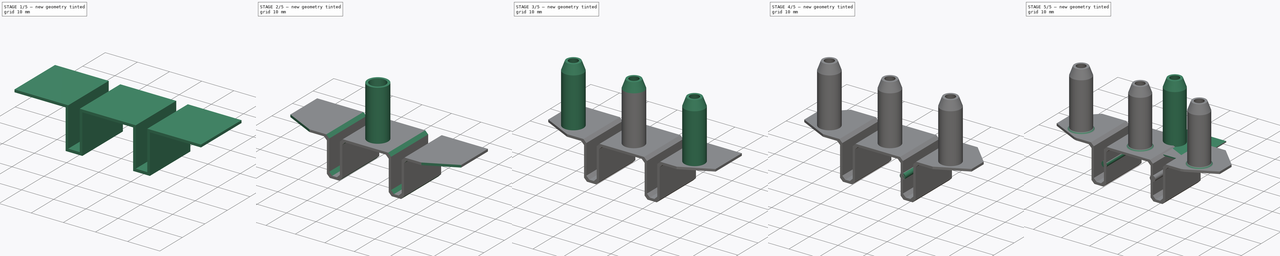
[diagram: build sequence overview — one tinted view per stage of 5, left to right]
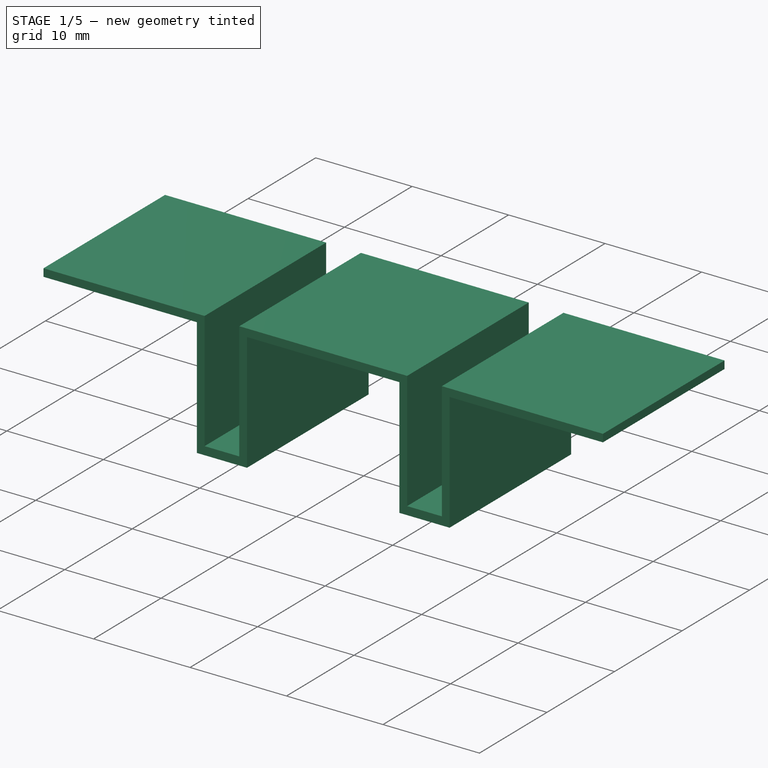
[diagram: stage 1 of 5 — iso view after this stage's code; geometry added in this stage tinted green]
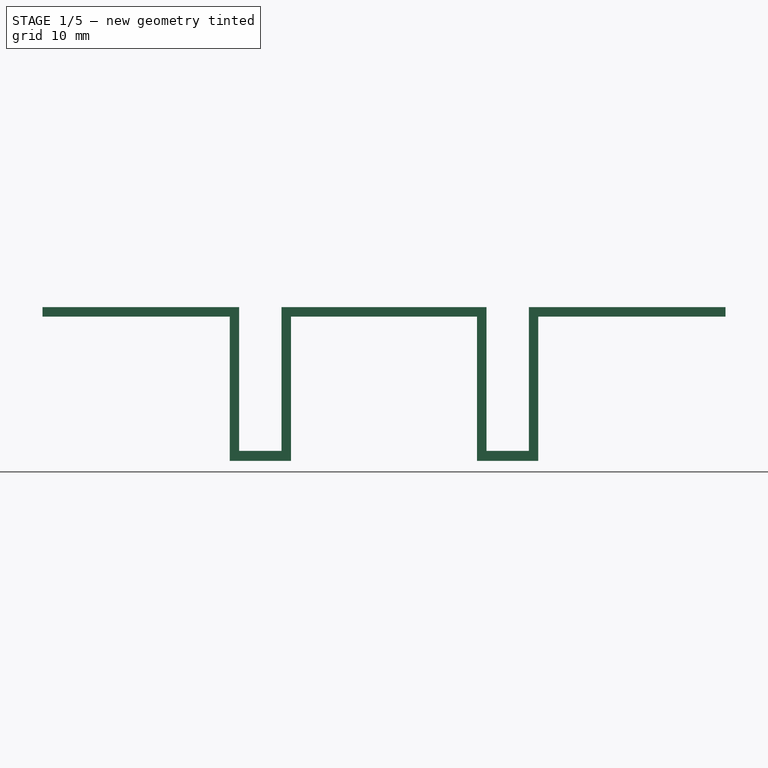
[diagram: stage 1 of 5 — front view after this stage's code; geometry added in this stage tinted green]
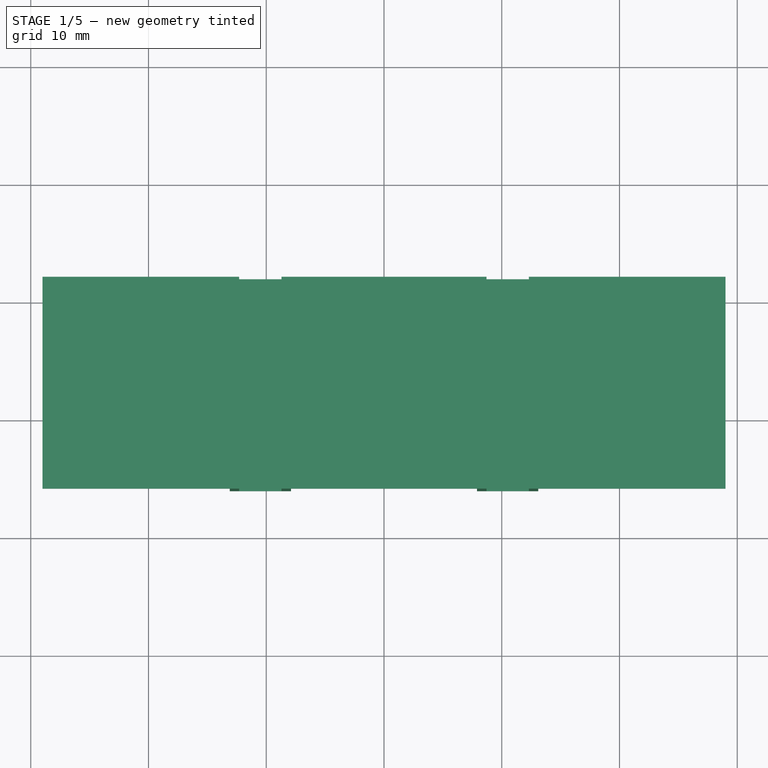
[diagram: stage 1 of 5 — top view after this stage's code; geometry added in this stage tinted green]
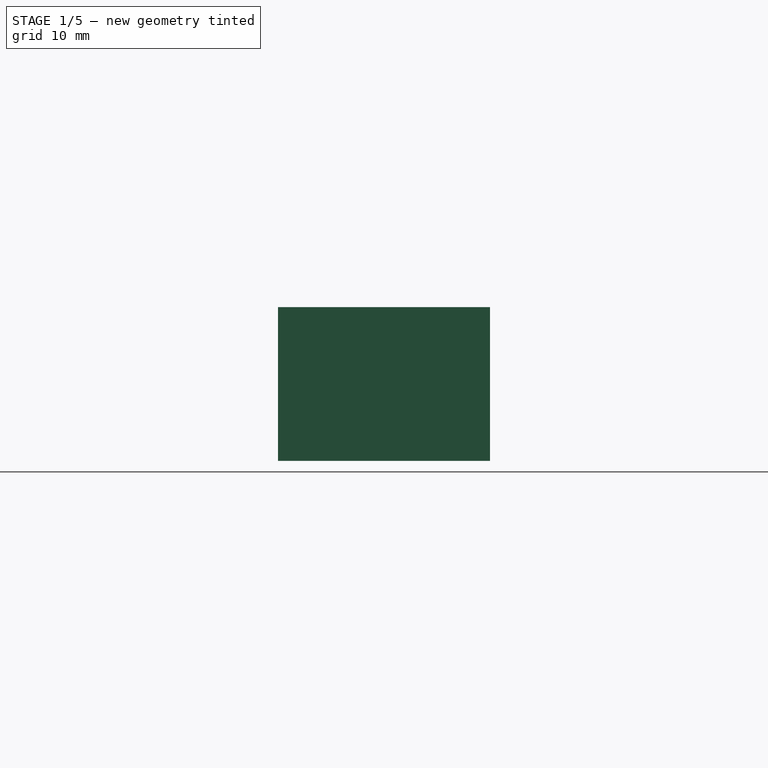
[diagram: stage 1 of 5 — right view after this stage's code; geometry added in this stage tinted green]
FCSTD DOCUMENT  (FreeCAD 1.2R20260210 (Git shallow))
Label: PD_TubeCover
License: Creative Commons Attribution 4.0
LicenseURL: https://creativecommons.org/licenses/by/4.0/
objects: PartDesign::SubShapeBinder×5, PartDesign::Mirrored×4, PartDesign::Pocket×4, PartDesign::Chamfer×4, PartDesign::Body×3, App::Point×3, PartDesign::AdditiveCylinder×2, PartDesign::AdditiveBox×2, PartDesign::Boolean×2, PartDesign::Pad×2, PartDesign::SubtractiveBox×2, PartDesign::SubtractiveCylinder×1, Sketcher::SketchObject×1
note: 73 computed .brp shape members not serialized (recipe doc carries the construction recipe); baked Part::Feature solids carry a one-line shape summary decoded from their .brp

FEATURE [Sketcher::SketchObject] Sketch
  ArcFitTolerance = 0
  AttachmentSupport = -> [XY_Plane003]
  ExternalTypes = [0]
  FullyConstrained = true
  MakeInternals = false
  MapMode = 5
  sketch-geometry (4):
    g0: LineSegment StartX=-29 StartY=-6 StartZ=0 EndX=29 EndY=-6 EndZ=0
    g1: LineSegment StartX=29 StartY=-6 StartZ=0 EndX=29 EndY=12 EndZ=0
    g2: LineSegment StartX=29 StartY=12 StartZ=0 EndX=-29 EndY=12 EndZ=0
    g3: LineSegment StartX=-29 StartY=12 StartZ=0 EndX=-29 EndY=-6 EndZ=0
  constraints (11):
    c: Coincident(g0,g1)
    c: Coincident(g1,g2)
    c: Coincident(g2,g3)
    c: Coincident(g3,g0)
    c: Horizontal(g0)
    c: Vertical(g1)
    c: Vertical(g3)
    c: DistanceY(g1,g1) = 18
    c: DistanceY(g0,g-1) = 6
    c: DistanceX(g2,g2) = 58
    c: Symmetric(g2,g1,g-2)
FEATURE [PartDesign::Pad] Pad
  Direction = (0,0,1)
  Length = 0.8
  Length2 = 10
  Profile = -> Sketch
  ReferenceAxis = -> Sketch [N_Axis]
  Refine = true
  SideType = 0
  Suppressed = false
  Type = 0
  Type2 = 0
FEATURE [PartDesign::SubShapeBinder] Binder005
  BindCopyOnChange = 0
  BindMode = 0
  ClaimChildren = false
  Context = -> Body003 [Binder005.]
  Fuse = false
  MakeFace = true
  OffsetFill = false
  OffsetIntersection = false
  OffsetJoinType = 0
  OffsetOpenResult = false
  PartialLoad = false
  Refine = true
  Relative = true
  Support = -> [Body]
  _Version = 2
FEATURE [PartDesign::SubShapeBinder] Binder006
  BindCopyOnChange = 0
  BindMode = 0
  ClaimChildren = false
  Context = -> Body003 [Binder006.]
  Fuse = false
  MakeFace = true
  OffsetFill = false
  OffsetIntersection = false
  OffsetJoinType = 0
  OffsetOpenResult = false
  PartialLoad = false
  Placement = pos=(21,0,0) rot=(0,0,1;0rad)
  Refine = true
  Relative = true
  Support = -> [Body]
  _Version = 2
FEATURE [PartDesign::SubShapeBinder] Binder007
  BindCopyOnChange = 0
  BindMode = 0
  ClaimChildren = false
  Context = -> Body003 [Binder007.]
  Fuse = false
  MakeFace = true
  OffsetFill = false
  OffsetIntersection = false
  OffsetJoinType = 0
  OffsetOpenResult = false
  PartialLoad = false
  Placement = pos=(-21,0,0) rot=(0,0,1;0rad)
  Refine = true
  Relative = true
  Support = -> [Body]
  _Version = 2
FEATURE [PartDesign::AdditiveBox] Box001
  AttacherType = Attacher::AttachEngine3D
  AttachmentOffset = pos=(-13.1,-6,0) rot=(0,0,1;0rad)
  AttachmentSupport = -> [XY_Plane003]
  BaseFeature = -> Pad
  Height = 12.25
  Length = 5.2
  MapMode = 5
  Placement = pos=(13.1,-6,0) rot=(0,1,0;3.14159rad)
  Refine = true
  Suppressed = false
  Width = 18
FEATURE [PartDesign::Mirrored] Mirrored
  BaseFeature = -> Box001
  MirrorPlane = -> YZ_Plane003
  Originals = -> [Box001]
  Placement = pos=(13.1,-6,0) rot=(0,1,0;3.14159rad)
  Refine = true
  Suppressed = false
  TransformMode = 0
FEATURE [PartDesign::SubtractiveBox] Box002
  AttacherType = Attacher::AttachEngine3D
  AttachmentOffset = pos=(-12.3,-6,-8.6) rot=(0,0,1;0rad)
  AttachmentSupport = -> [XY_Plane003]
  BaseFeature = -> Mirrored
  Height = 20
  Length = 3.6
  MapMode = 5
  Placement = pos=(12.3,-6,8.6) rot=(0,1,0;3.14159rad)
  Refine = true
  Suppressed = false
  Width = 18
FEATURE [PartDesign::Mirrored] Mirrored001
  BaseFeature = -> Box002
  MirrorPlane = -> YZ_Plane003
  Originals = -> [Box002]
  Placement = pos=(12.3,-6,8.6) rot=(0,1,0;3.14159rad)
  Refine = true
  Suppressed = false
  TransformMode = 0
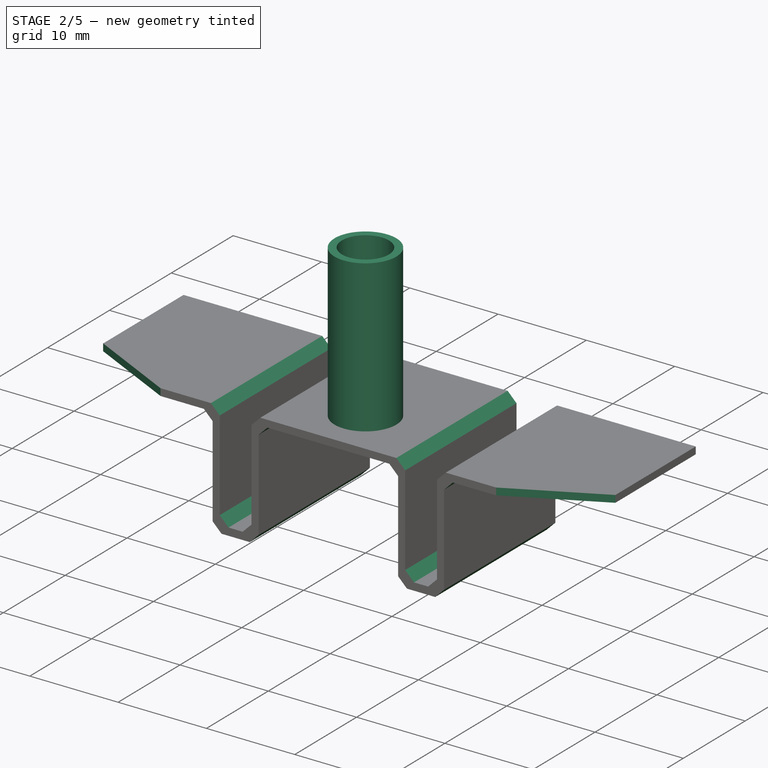
[diagram: stage 2 of 5 — iso view after this stage's code; geometry added in this stage tinted green]
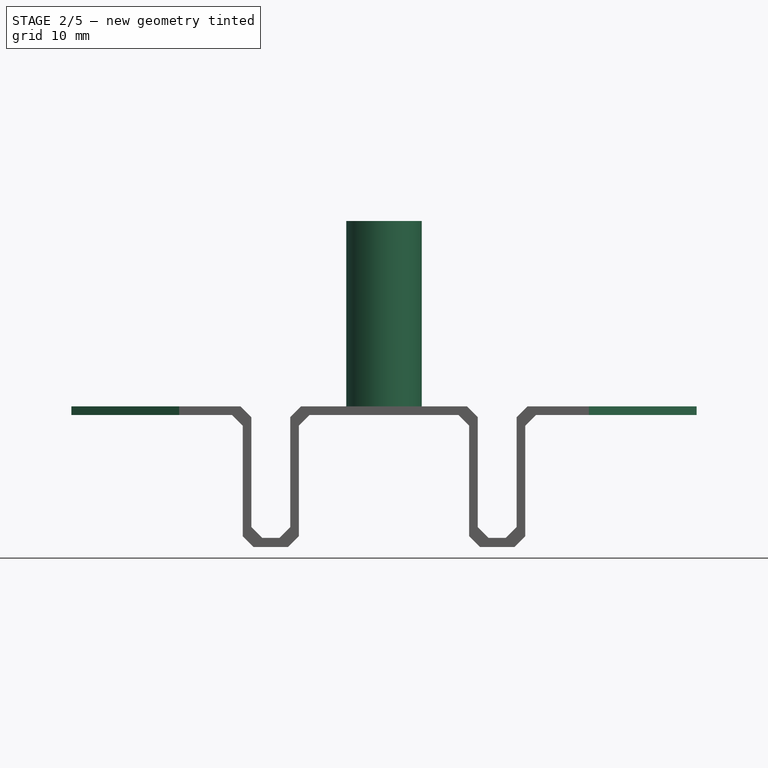
[diagram: stage 2 of 5 — front view after this stage's code; geometry added in this stage tinted green]
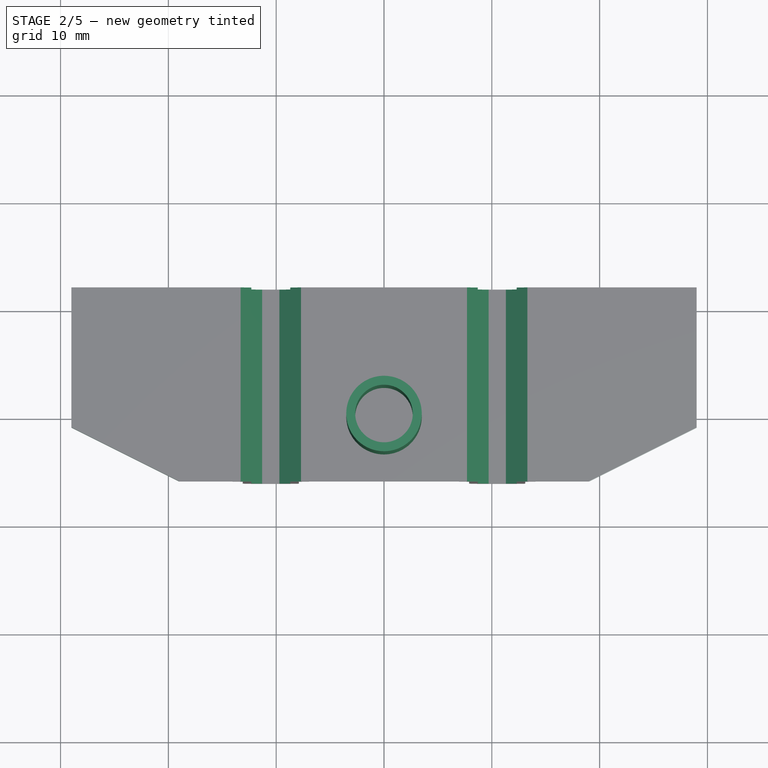
[diagram: stage 2 of 5 — top view after this stage's code; geometry added in this stage tinted green]
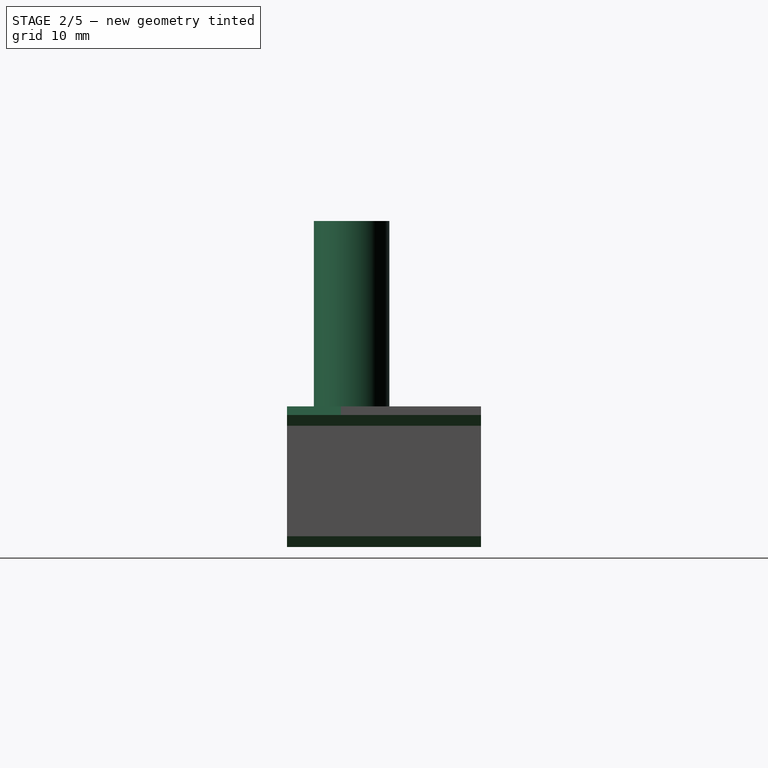
[diagram: stage 2 of 5 — right view after this stage's code; geometry added in this stage tinted green]
FEATURE [PartDesign::AdditiveCylinder] Cylinder001
  Angle = 360
  AttacherType = Attacher::AttachEngine3D
  AttachmentSupport = -> [XY_Plane]
  FirstAngle = 0
  Height = 18
  MapMode = 5
  Radius = 3.5
  Refine = true
  SecondAngle = 0
  Suppressed = false
FEATURE [PartDesign::SubtractiveCylinder] Cylinder
  Angle = 360
  AttacherType = Attacher::AttachEngine3D
  BaseFeature = -> Cylinder001
  FirstAngle = 0
  Height = 18
  Radius = 2.67
  Refine = true
  SecondAngle = 0
  Suppressed = false
FEATURE [PartDesign::Body] Body001  label="cover-1"
  AllowCompound = true
  Group = -> [Box,Binder001,Boolean,Pocket]
  Origin = -> Origin001
  Tip = -> Pocket
FEATURE [PartDesign::Chamfer] Chamfer001
  Angle = 45
  Base = -> Mirrored001 [Edge51,Edge54,Edge50,Edge47,Edge48,Edge52,Edge58,Edge25,Edge60,Edge59,Edge4,Edge44,Edge2,Edge57,Edge49,Edge53]
  BaseFeature = -> Mirrored001
  ChamferType = 0
  FlipDirection = false
  Placement = pos=(12.3,-6,8.6) rot=(0,1,0;3.14159rad)
  Refine = true
  Size = 1
  Size2 = 1
  SupportTransform = false
  Suppressed = false
  UseAllEdges = false
FEATURE [PartDesign::Chamfer] Chamfer
  Angle = 45
  Base = -> Chamfer001 [Edge74,Edge46]
  BaseFeature = -> Chamfer001
  ChamferType = 1
  FlipDirection = true
  Placement = pos=(12.3,-6,8.6) rot=(0,1,0;3.14159rad)
  Refine = true
  Size = 5
  Size2 = 10
  SupportTransform = false
  Suppressed = false
  UseAllEdges = false
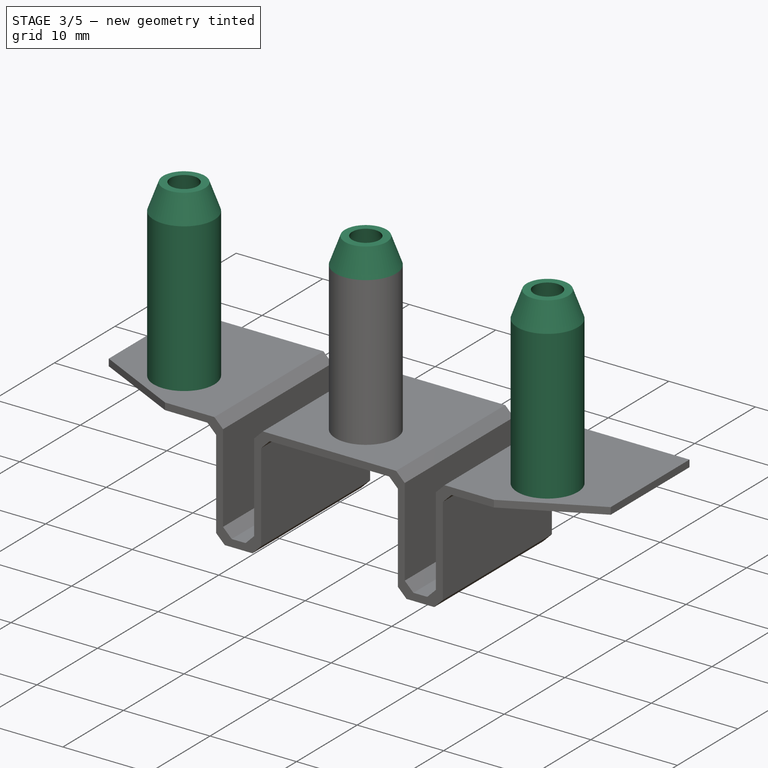
[diagram: stage 3 of 5 — iso view after this stage's code; geometry added in this stage tinted green]
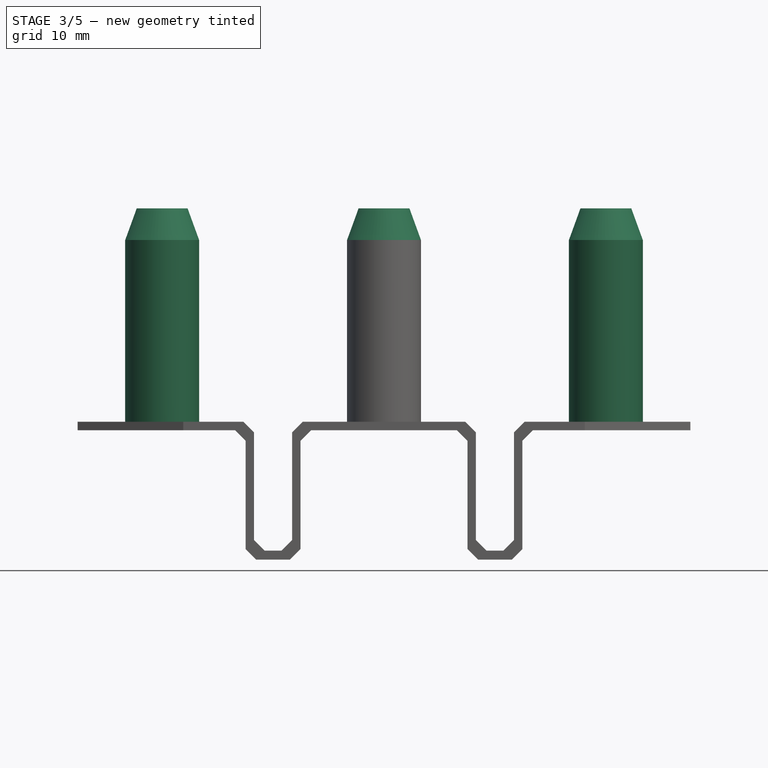
[diagram: stage 3 of 5 — front view after this stage's code; geometry added in this stage tinted green]
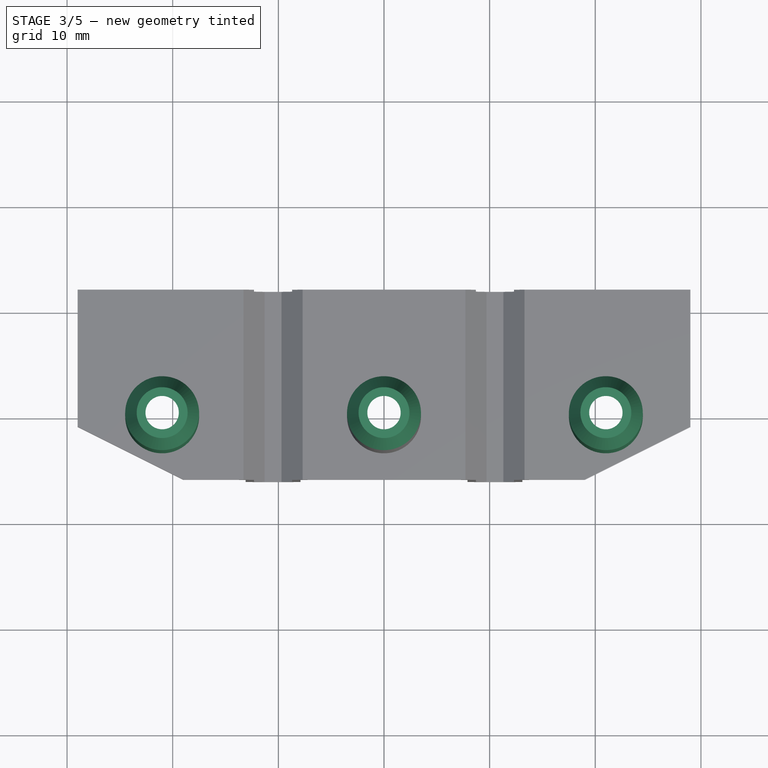
[diagram: stage 3 of 5 — top view after this stage's code; geometry added in this stage tinted green]
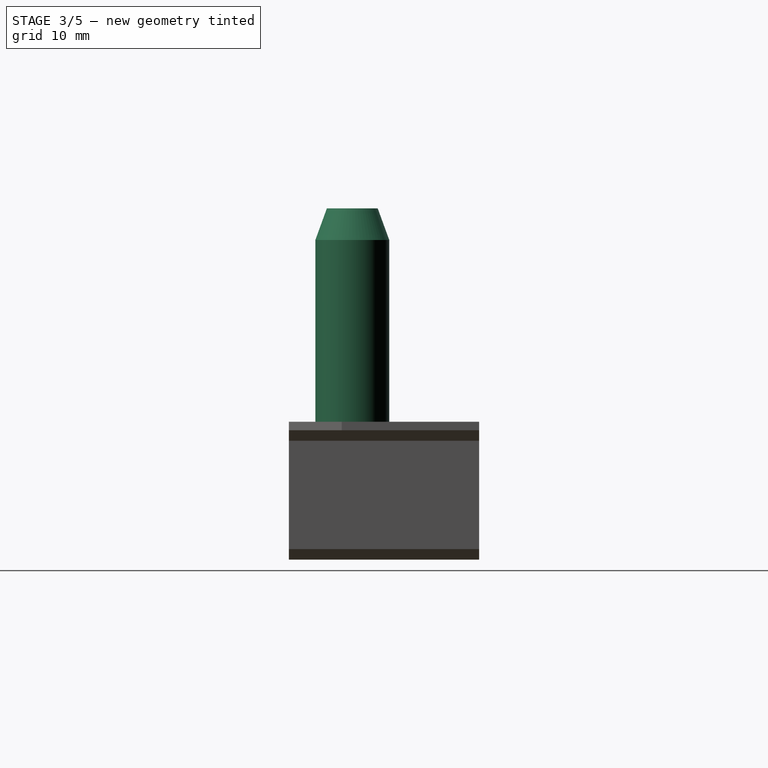
[diagram: stage 3 of 5 — right view after this stage's code; geometry added in this stage tinted green]
FEATURE [PartDesign::Pad] Pad001
  BaseFeature = -> Cylinder
  Direction = (0,0,1)
  Length = 3
  Length2 = 10
  Profile = -> Cylinder [Face3]
  Refine = true
  SideType = 0
  Suppressed = false
  TaperAngle = -20
  Type = 0
  Type2 = 0
FEATURE [PartDesign::Boolean] Boolean001
  BaseFeature = -> Chamfer
  Group = -> [Binder007,Binder005,Binder006]
  Refine = true
  Suppressed = false
  Type = 0
FEATURE [PartDesign::Pocket] Pocket001
  BaseFeature = -> Boolean001
  Direction = (-2e-16,0,-1)
  Length = 5
  Length2 = 5
  Profile = -> Boolean001 [Face53]
  Refine = true
  SideType = 0
  Suppressed = false
  Type = 0
  Type2 = 0
FEATURE [PartDesign::Pocket] Pocket002
  BaseFeature = -> Pocket001
  Direction = (-2e-16,0,-1)
  Length = 5
  Length2 = 5
  Profile = -> Pocket001 [Face55]
  Refine = true
  SideType = 0
  Suppressed = false
  Type = 0
  Type2 = 0
FEATURE [PartDesign::Pocket] Pocket003
  BaseFeature = -> Pocket002
  Direction = (-2e-16,0,-1)
  Length = 5
  Length2 = 5
  Profile = -> Pocket002 [Face55]
  Refine = true
  SideType = 0
  Suppressed = false
  Type = 0
  Type2 = 0
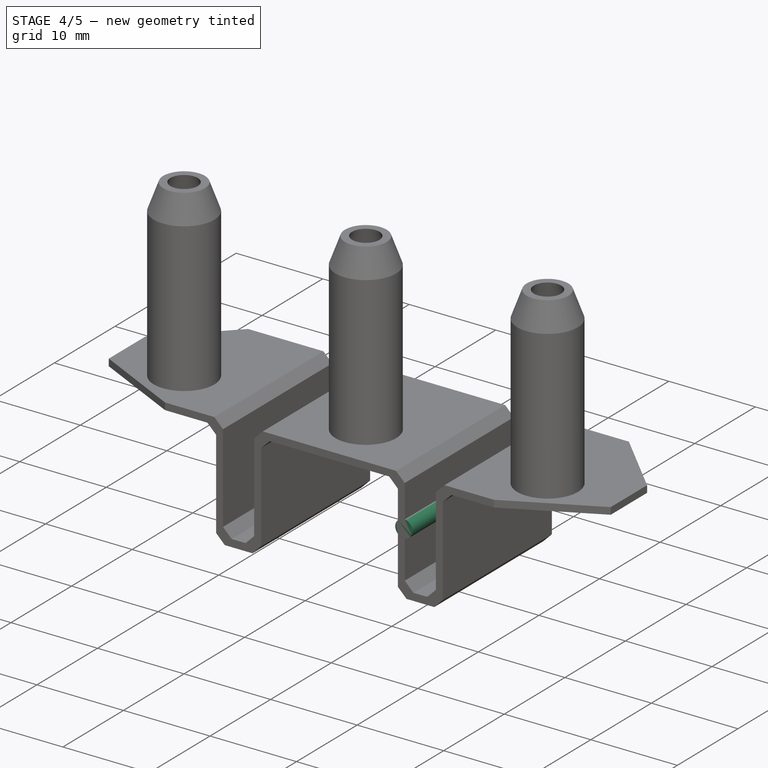
[diagram: stage 4 of 5 — iso view after this stage's code; geometry added in this stage tinted green]
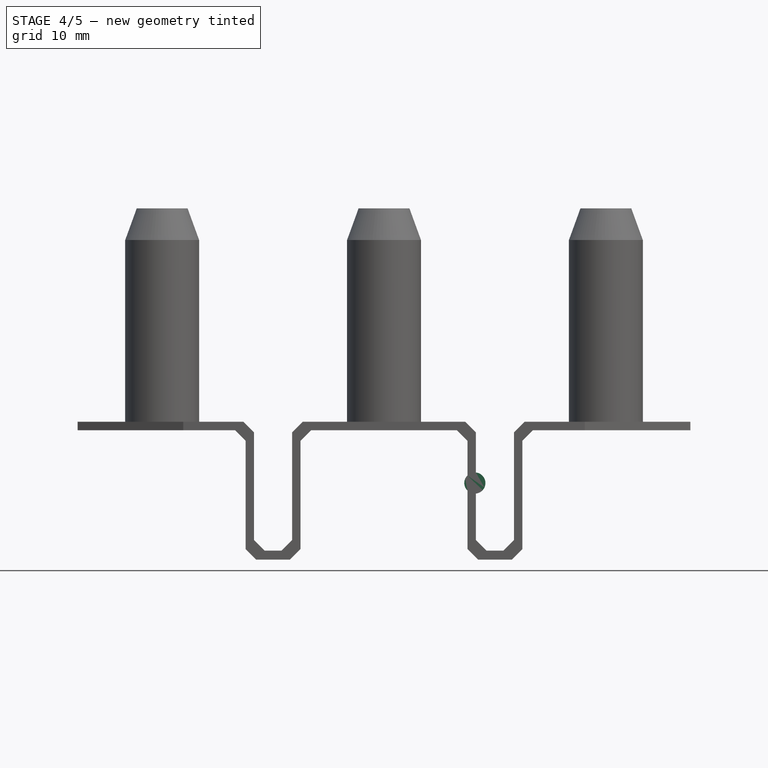
[diagram: stage 4 of 5 — front view after this stage's code; geometry added in this stage tinted green]
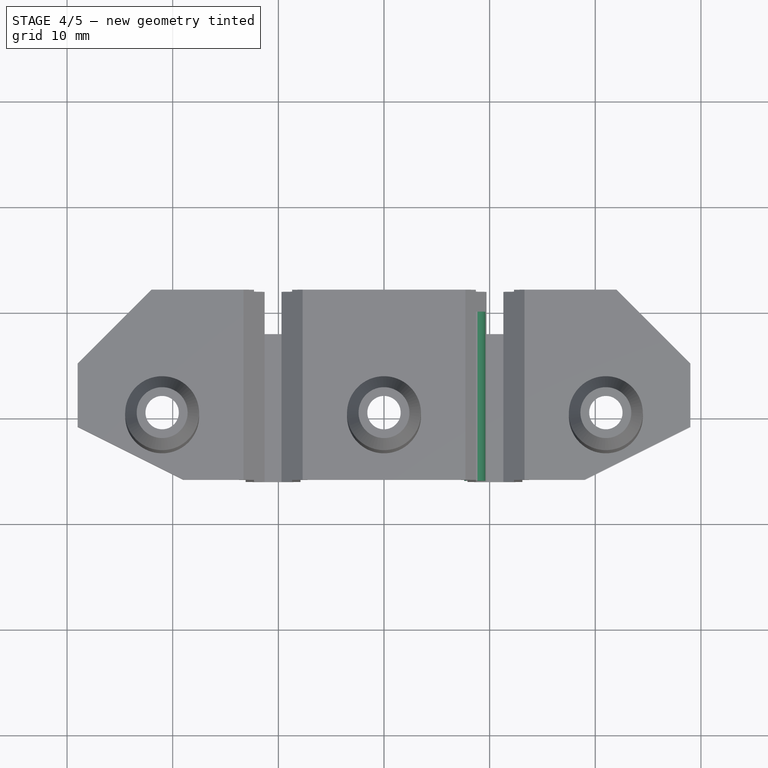
[diagram: stage 4 of 5 — top view after this stage's code; geometry added in this stage tinted green]
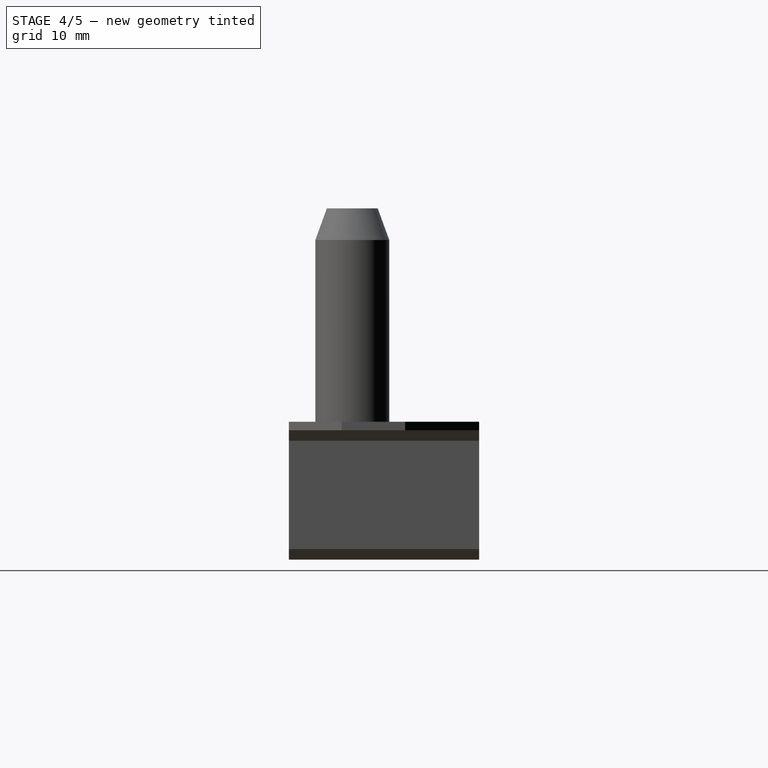
[diagram: stage 4 of 5 — right view after this stage's code; geometry added in this stage tinted green]
FEATURE [PartDesign::Chamfer] Chamfer002
  Angle = 45
  Base = -> Pocket003 [Edge119,Edge120]
  BaseFeature = -> Pocket003
  ChamferType = 0
  FlipDirection = false
  Refine = true
  Size = 7
  Size2 = 7
  SupportTransform = false
  Suppressed = false
  UseAllEdges = false
FEATURE [PartDesign::SubtractiveBox] Box003
  AttacherType = Attacher::AttachEngine3D
  AttachmentOffset = pos=(-11.3,8,-16) rot=(0,0,1;0rad)
  AttachmentSupport = -> [XY_Plane003]
  BaseFeature = -> Chamfer002
  Height = 10
  Length = 1.6
  MapMode = 5
  Placement = pos=(-11.3,8,-16) rot=(0,0,1;0rad)
  Refine = true
  Suppressed = false
  Width = 14
FEATURE [PartDesign::Mirrored] Mirrored002
  BaseFeature = -> Box003
  MirrorPlane = -> YZ_Plane003
  Originals = -> [Box003]
  Placement = pos=(-11.3,8,-16) rot=(0,0,1;0rad)
  Refine = true
  Suppressed = false
  TransformMode = 0
FEATURE [PartDesign::AdditiveCylinder] Cylinder002
  Angle = 360
  AttacherType = Attacher::AttachEngine3D
  AttachmentOffset = pos=(8.6,-5,-10) rot=(0,0,1;0rad)
  AttachmentSupport = -> [XZ_Plane003]
  BaseFeature = -> Mirrored002
  FirstAngle = 0
  Height = 16
  MapMode = 5
  Placement = pos=(8.6,10,-5) rot=(1,0,0;1.5708rad)
  Radius = 1
  Refine = true
  SecondAngle = 0
  Suppressed = false
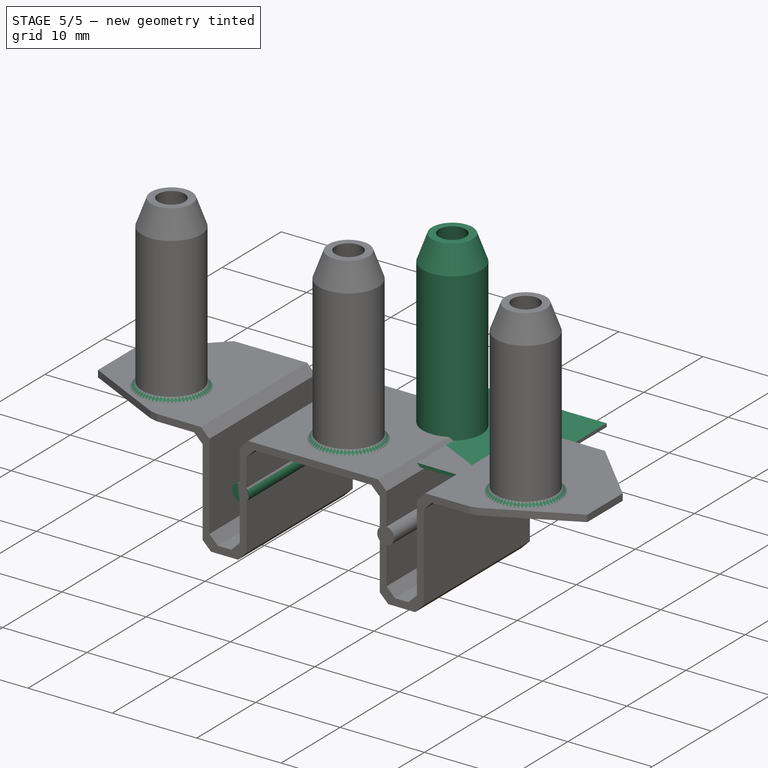
[diagram: stage 5 of 5 — iso view after this stage's code; geometry added in this stage tinted green]
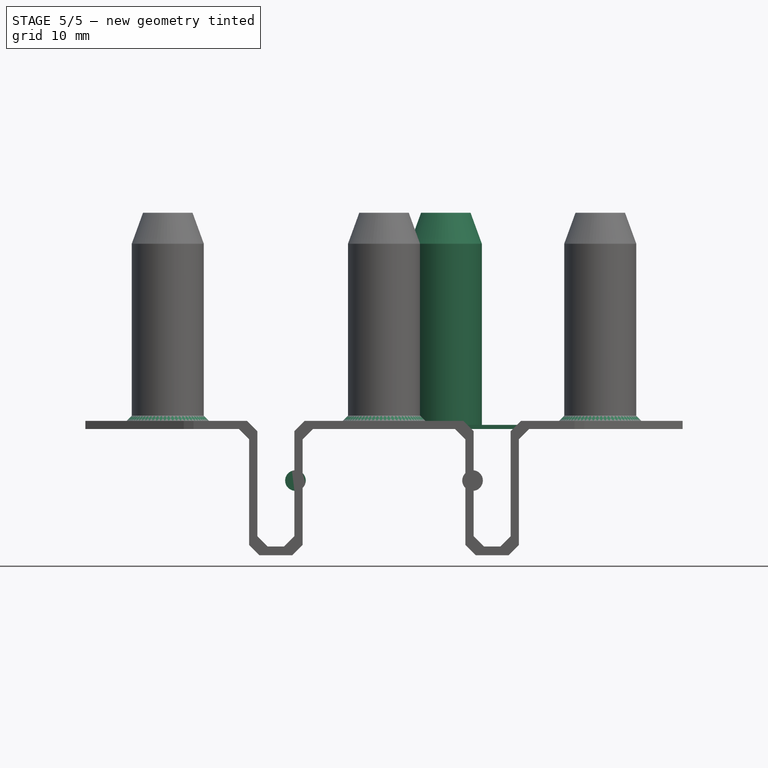
[diagram: stage 5 of 5 — front view after this stage's code; geometry added in this stage tinted green]
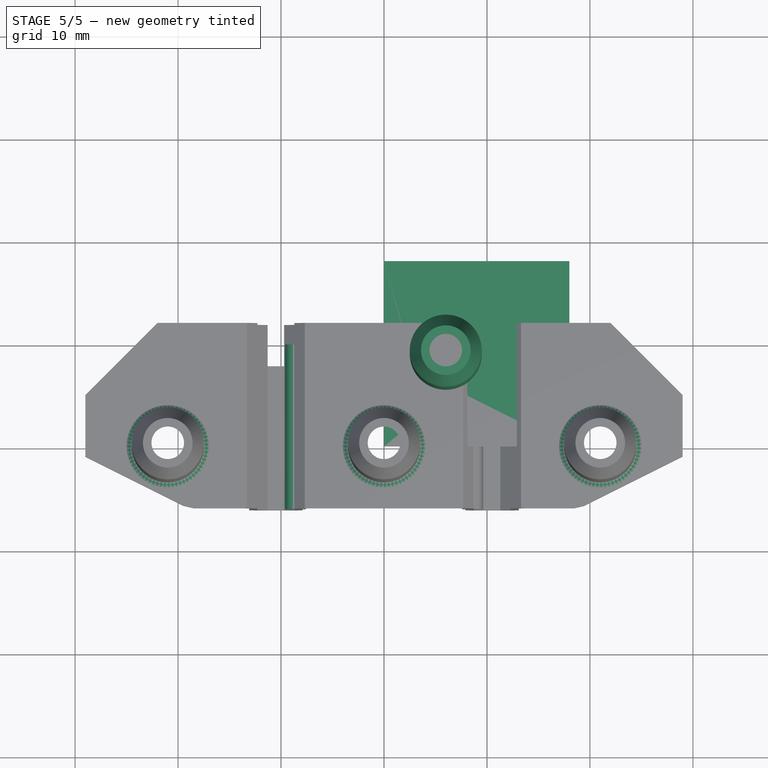
[diagram: stage 5 of 5 — top view after this stage's code; geometry added in this stage tinted green]
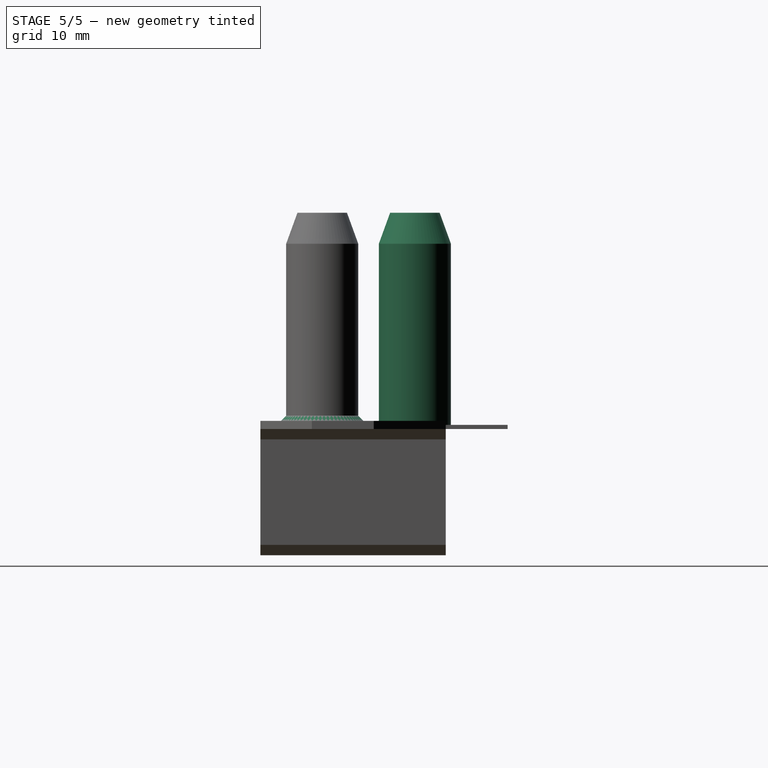
[diagram: stage 5 of 5 — right view after this stage's code; geometry added in this stage tinted green]
FEATURE [PartDesign::AdditiveBox] Box
  AttacherType = Attacher::AttachEngine3D
  AttachmentSupport = -> [XY_Plane001]
  Height = 0.4
  Length = 18
  MapMode = 5
  Refine = true
  Suppressed = false
  Width = 18
FEATURE [PartDesign::SubShapeBinder] Binder
  BindCopyOnChange = 0
  BindMode = 0
  ClaimChildren = false
  Context = -> Body001 [Binder.]
  Fuse = false
  MakeFace = true
  OffsetFill = false
  OffsetIntersection = false
  OffsetJoinType = 0
  OffsetOpenResult = false
  PartialLoad = false
  Placement = pos=(6,9,0) rot=(0,0,1;0rad)
  Refine = true
  Relative = true
  Support = -> [Body]
  _Version = 2
FEATURE [PartDesign::SubShapeBinder] Binder001
  BindCopyOnChange = 0
  BindMode = 0
  ClaimChildren = false
  Context = -> Body001 [Binder001.]
  Fuse = false
  MakeFace = true
  OffsetFill = false
  OffsetIntersection = false
  OffsetJoinType = 0
  OffsetOpenResult = false
  PartialLoad = false
  Placement = pos=(6,9,0) rot=(0,0,1;0rad)
  Refine = true
  Relative = true
  Support = -> [Body]
  _Version = 2
FEATURE [PartDesign::Boolean] Boolean
  BaseFeature = -> Box
  Group = -> [Binder]
  Refine = true
  Suppressed = false
  Type = 0
FEATURE [PartDesign::Body] Body  label="tube-1"
  AllowCompound = true
  Group = -> [Cylinder001,Cylinder,Pad001]
  Origin = -> Origin
  Tip = -> Pad001
FEATURE [PartDesign::Pocket] Pocket
  BaseFeature = -> Boolean
  Direction = (0,0,-1)
  Length = 5
  Length2 = 5
  Profile = -> Boolean [Face11]
  Refine = true
  SideType = 0
  Suppressed = false
  Type = 0
  Type2 = 0
FEATURE [PartDesign::Mirrored] Mirrored003
  BaseFeature = -> Cylinder002
  MirrorPlane = -> YZ_Plane003
  Originals = -> [Cylinder002]
  Placement = pos=(8.6,10,-5) rot=(1,0,0;1.5708rad)
  Refine = true
  Suppressed = false
  TransformMode = 0
FEATURE [App::Point] Origin004  label="Ursprung"
  Role = Origin
FEATURE [App::Point] Origin005  label="Ursprung"
  Role = Origin
FEATURE [App::Point] Origin006  label="Ursprung"
  Role = Origin
FEATURE [PartDesign::Chamfer] Chamfer003
  Angle = 45
  Base = -> Mirrored003 [Edge43,Edge77,Edge163,Edge179,Edge80]
  BaseFeature = -> Mirrored003
  ChamferType = 0
  FlipDirection = false
  Placement = pos=(8.6,10,-5) rot=(1,0,0;1.5708rad)
  Refine = true
  Size = 0.5
  Size2 = 1
  SupportTransform = false
  Suppressed = false
  UseAllEdges = false
FEATURE [PartDesign::Body] Body003  label="cover-3"
  AllowCompound = true
  Group = -> [Sketch,Pad,Box001,Mirrored,Box002,Mirrored001,Chamfer001,Chamfer,Boolean001,Pocket001,Pocket002,Pocket003,Chamfer002,Box003,Mirrored002,Cylinder002,Mirrored003,Chamfer003]
  Origin = -> Origin003
  Tip = -> Chamfer003
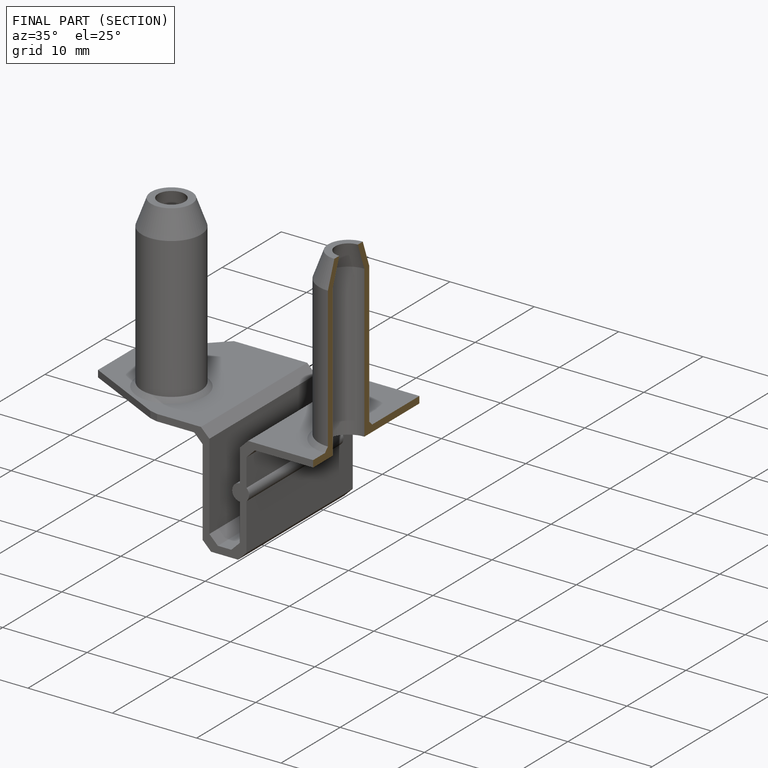
[diagram: finished part — half-section view (interior)]
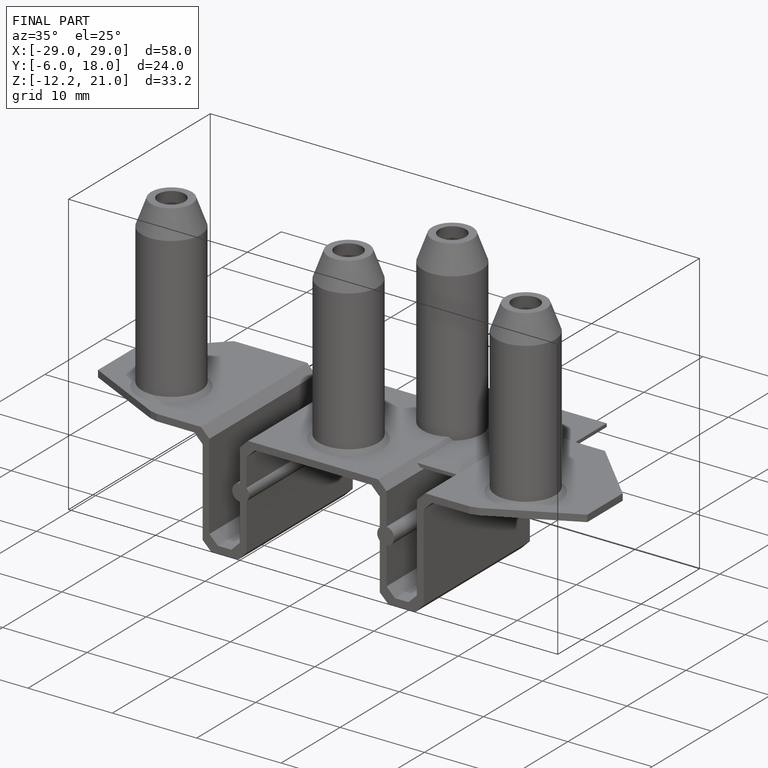
[diagram: finished part — iso view with bounding-box wireframe]
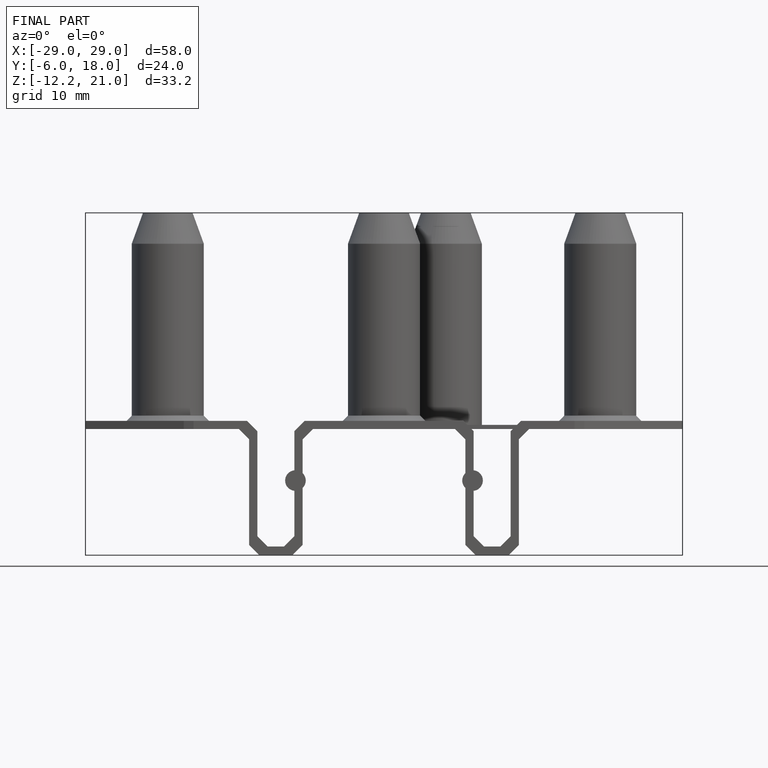
[diagram: finished part — front view with bounding-box wireframe]
